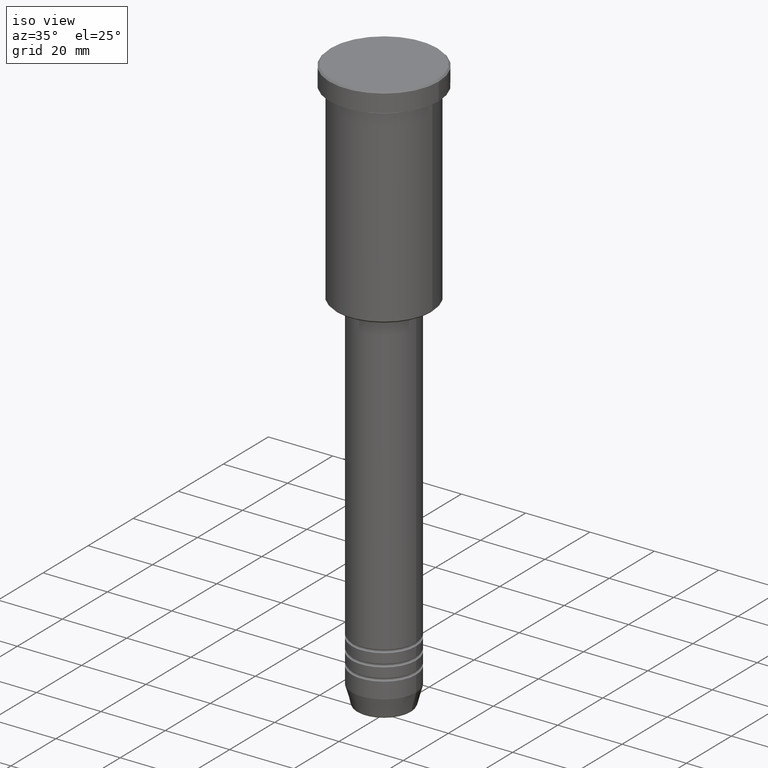
[diagram: clean part render]
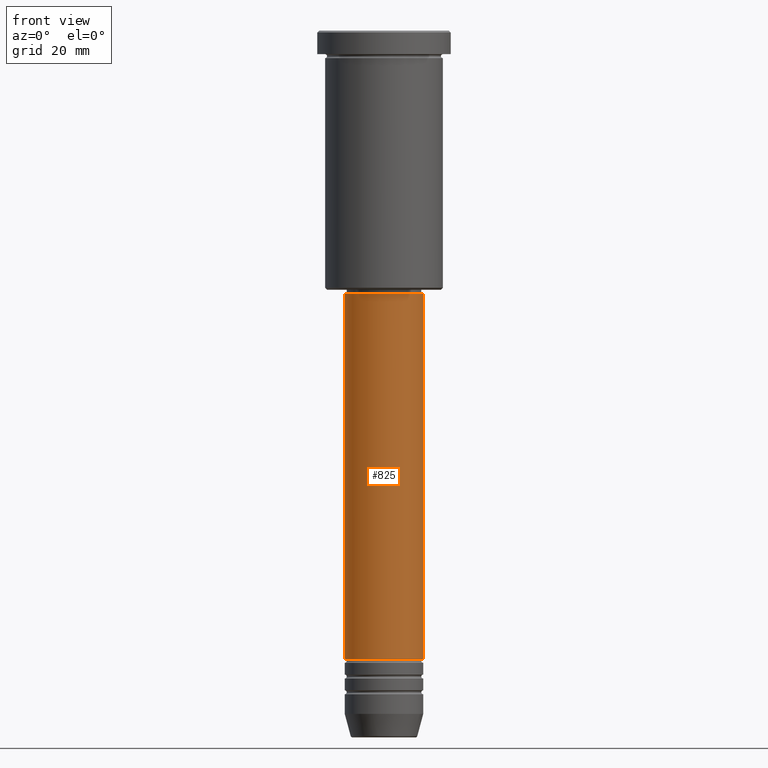
[diagram: tour spotlight — one face highlighted and labeled with its STEP entity id]
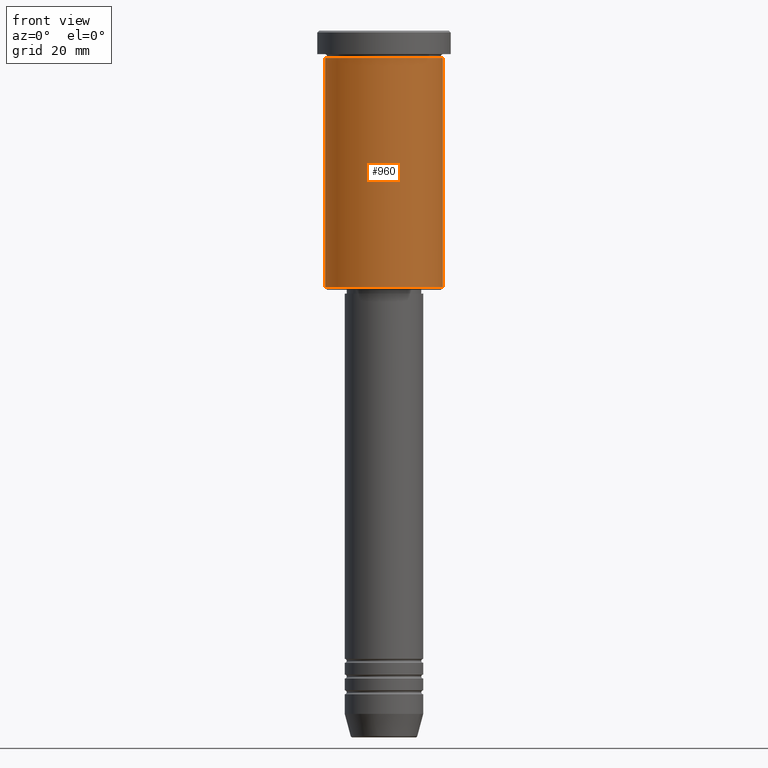
[diagram: tour spotlight — one face highlighted and labeled with its STEP entity id]
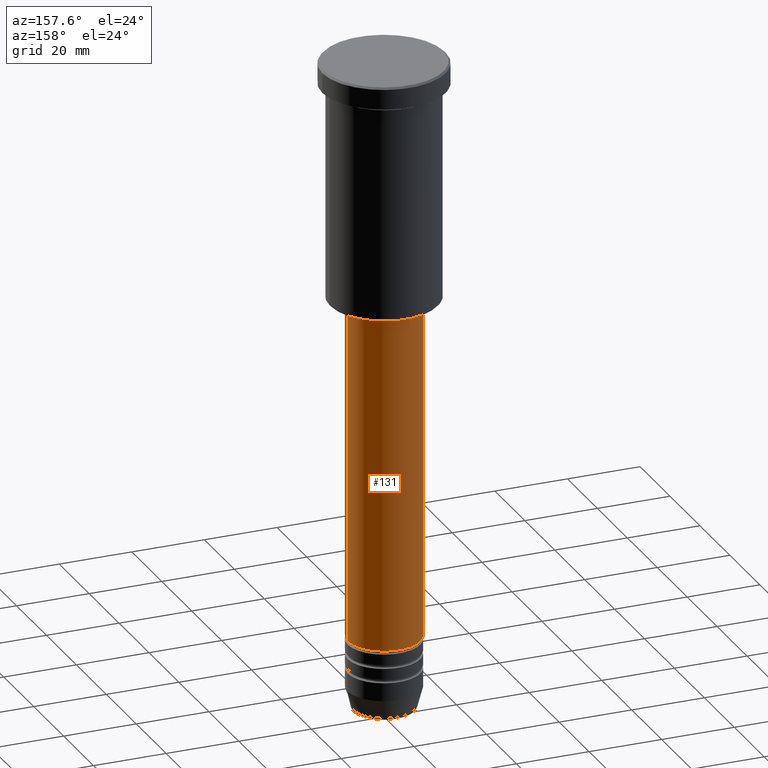
[diagram: tour spotlight — one face highlighted and labeled with its STEP entity id]
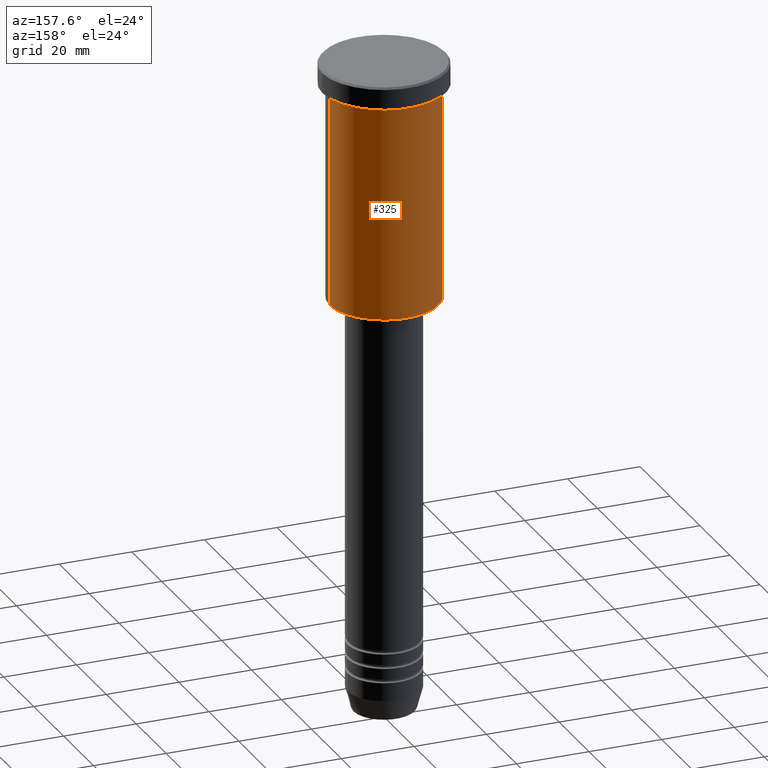
[diagram: tour spotlight — one face highlighted and labeled with its STEP entity id]
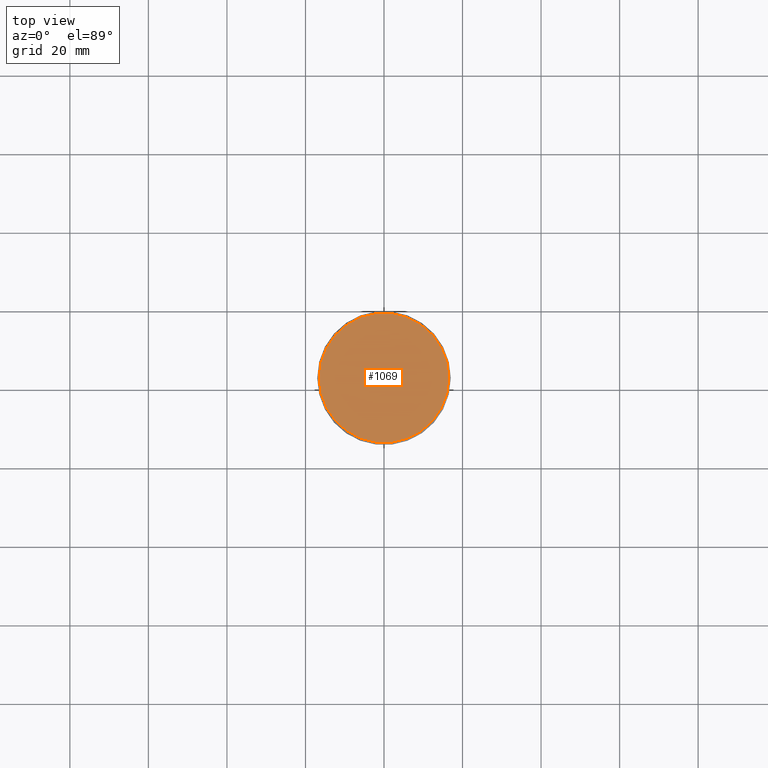
[diagram: tour spotlight — one face highlighted and labeled with its STEP entity id]
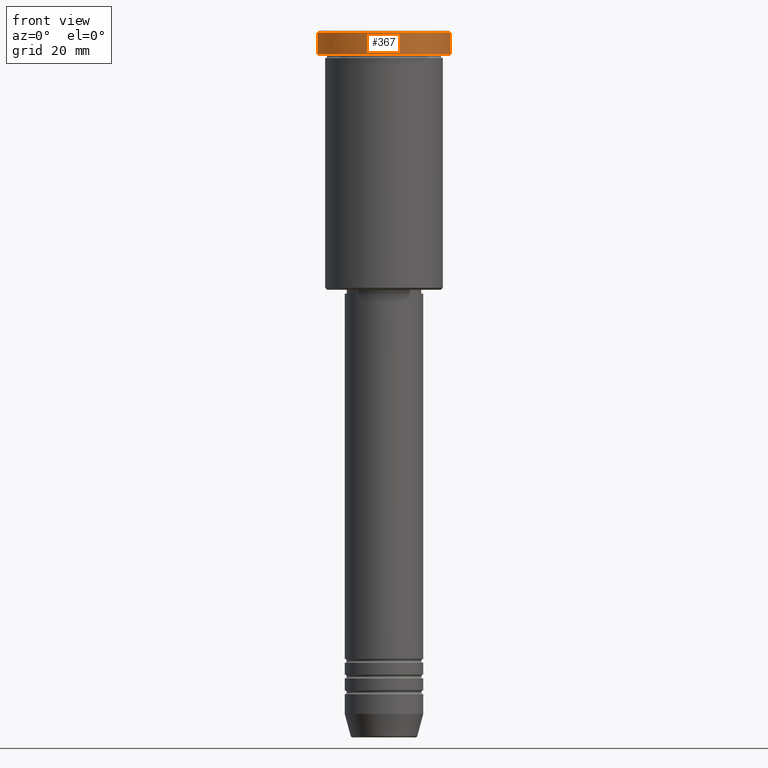
[diagram: tour spotlight — one face highlighted and labeled with its STEP entity id]
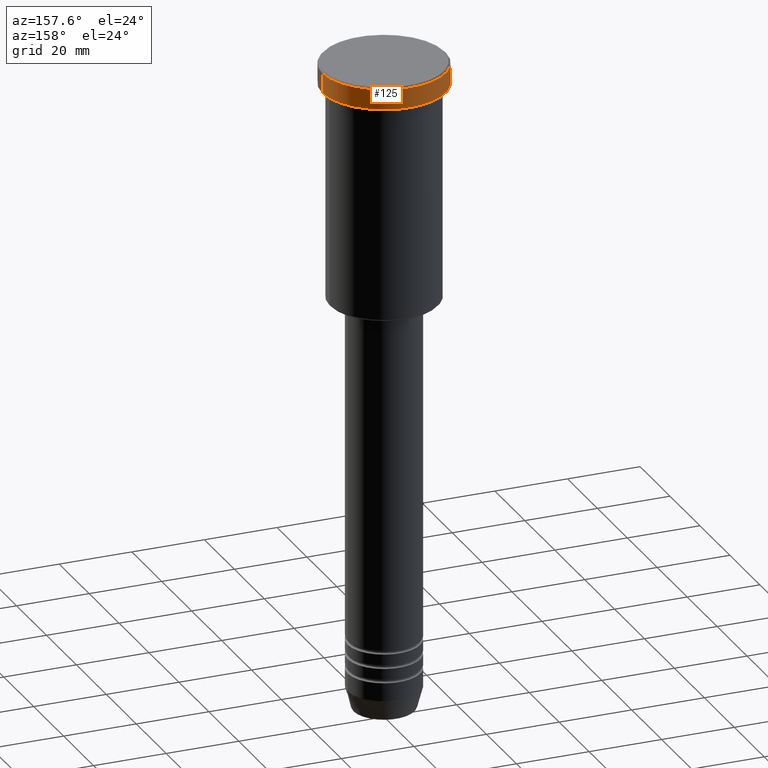
[diagram: tour spotlight — one face highlighted and labeled with its STEP entity id]
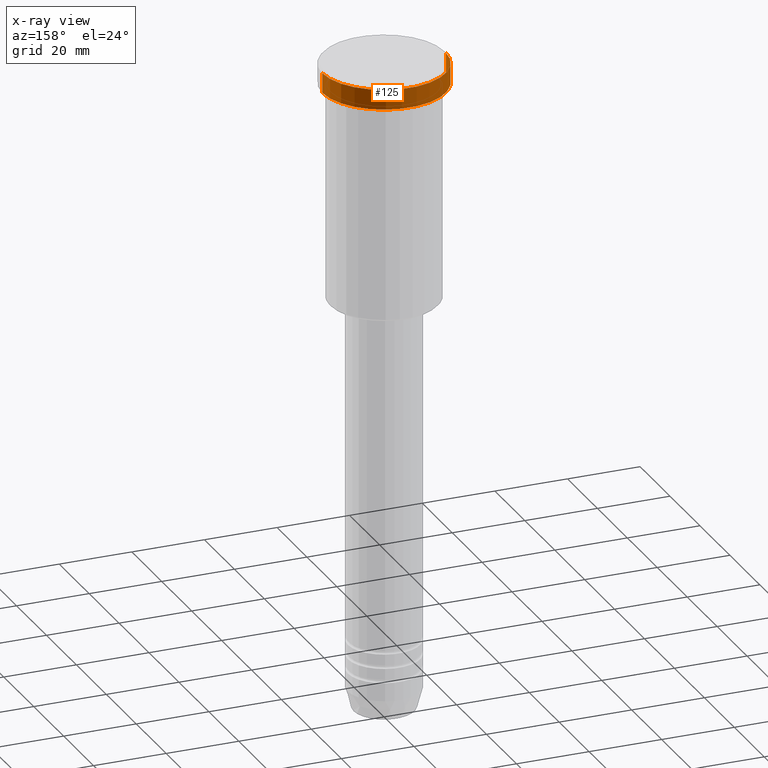
[diagram: x-ray of the same camera — body ghosted, this tour face saturated]
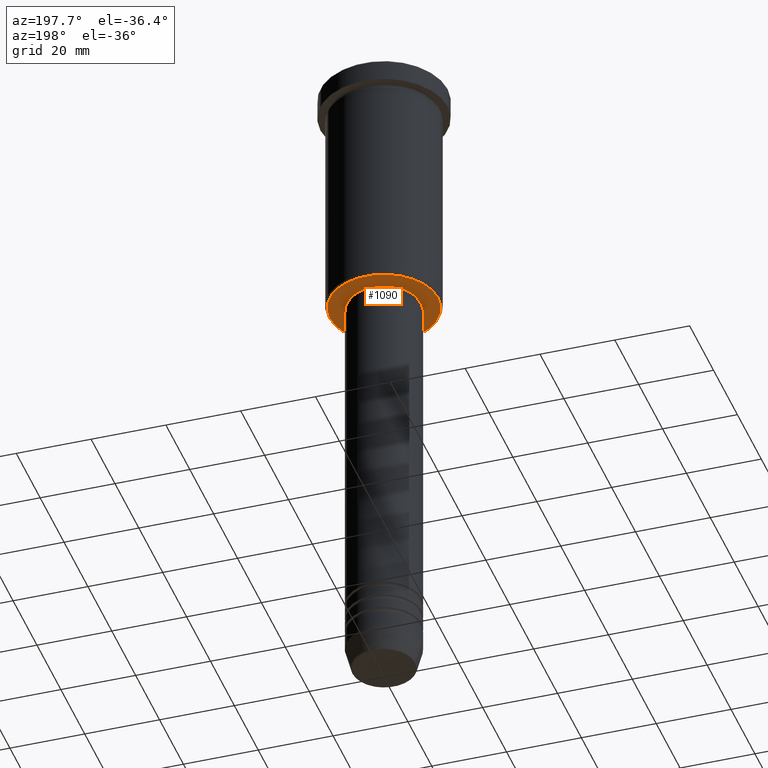
[diagram: tour spotlight — one face highlighted and labeled with its STEP entity id]
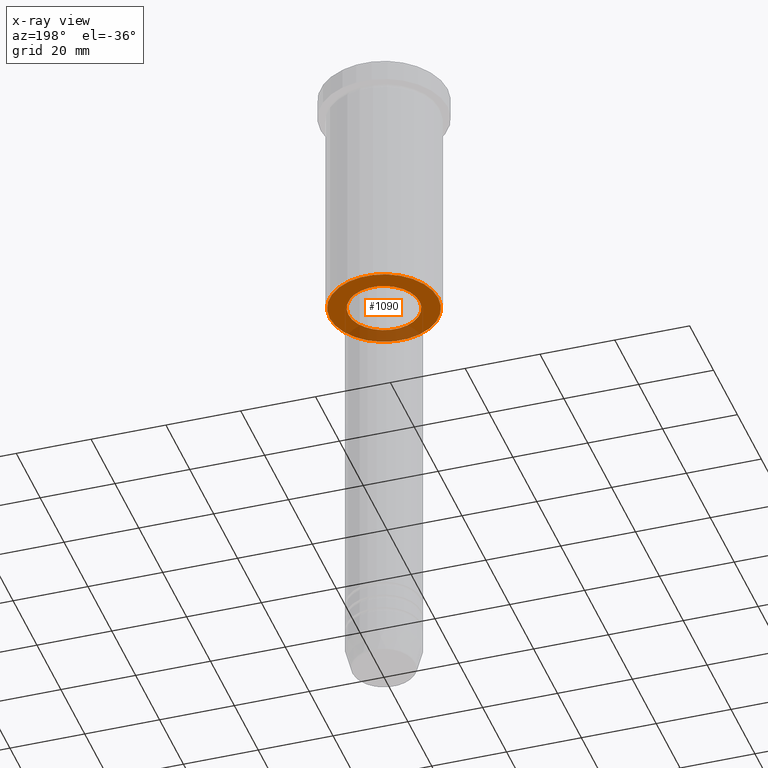
[diagram: x-ray of the same camera — body ghosted, this tour face saturated]
A machine part: a face-by-face anatomy tour. The part has 43 B-rep faces; the first image is the clean iso view, then the 8 largest visible faces are spotlighted one at a time (largest first), each with its STEP entity span.

Face 1 — front view, entity #825. In plain terms, the highlighted cylindrical surface (partial cylindrical patch) has radius 10 mm, axis along (-0, -0, 1).
Definition (entity closure, byte-faithful):
#6 = LINE ( 'NONE', #841, #1075 ) ;
#18 = CIRCLE ( 'NONE', #667, 9.999999999999998224 ) ;
#67 = DIRECTION ( 'NONE',  ( -0.000000000000000000, -0.000000000000000000, 1.000000000000000000 ) ) ;
#73 = EDGE_LOOP ( 'NONE', ( #370, #595, #387, #1060 ) ) ;
#78 = CARTESIAN_POINT ( 'NONE',  ( 0.000000000000000000, 0.000000000000000000, -67.00000000000002842 ) ) ;
#90 = EDGE_CURVE ( 'NONE', #742, #167, #6, .T. ) ;
#167 = VERTEX_POINT ( 'NONE', #1124 ) ;
#169 = CARTESIAN_POINT ( 'NONE',  ( 0.000000000000000000, 0.000000000000000000, -160.0000000000000000 ) ) ;
#234 = DIRECTION ( 'NONE',  ( 1.000000000000000000, 0.000000000000000000, 0.000000000000000000 ) ) ;
#263 = AXIS2_PLACEMENT_3D ( 'NONE', #169, #67, #700 ) ;
#353 = EDGE_CURVE ( 'NONE', #167, #738, #18, .T. ) ;
#370 = ORIENTED_EDGE ( 'NONE', *, *, #90, .F. ) ;
#387 = ORIENTED_EDGE ( 'NONE', *, *, #623, .T. ) ;
#417 = CARTESIAN_POINT ( 'NONE',  ( 0.000000000000000000, 0.000000000000000000, 0.000000000000000000 ) ) ;
#430 = CARTESIAN_POINT ( 'NONE',  ( 9.999999999999998224, 0.000000000000000000, -67.00000000000002842 ) ) ;
#582 = CARTESIAN_POINT ( 'NONE',  ( 10.00000000000000000, 0.000000000000000000, 0.000000000000000000 ) ) ;
#595 = ORIENTED_EDGE ( 'NONE', *, *, #740, .T. ) ;
#609 = FACE_OUTER_BOUND ( 'NONE', #73, .T. ) ;
#623 = EDGE_CURVE ( 'NONE', #964, #738, #1113, .T. ) ;
#667 = AXIS2_PLACEMENT_3D ( 'NONE', #78, #702, #807 ) ;
#700 = DIRECTION ( 'NONE',  ( 1.000000000000000000, 0.000000000000000000, 0.000000000000000000 ) ) ;
#702 = DIRECTION ( 'NONE',  ( -0.000000000000000000, -0.000000000000000000, 1.000000000000000000 ) ) ;
#731 = CARTESIAN_POINT ( 'NONE',  ( 10.00000000000000178, 0.000000000000000000, -160.0000000000000000 ) ) ;
#738 = VERTEX_POINT ( 'NONE', #430 ) ;
#740 = EDGE_CURVE ( 'NONE', #742, #964, #1014, .T. ) ;
#742 = VERTEX_POINT ( 'NONE', #792 ) ;
#792 = CARTESIAN_POINT ( 'NONE',  ( -10.00000000000000178, 1.224646799147353454E-15, -160.0000000000000000 ) ) ;
#799 = AXIS2_PLACEMENT_3D ( 'NONE', #417, #973, #234 ) ;
#807 = DIRECTION ( 'NONE',  ( 1.000000000000000000, 0.000000000000000000, 0.000000000000000000 ) ) ;
#825 = ADVANCED_FACE ( 'NONE', ( #609 ), #880, .T. ) ;
#841 = CARTESIAN_POINT ( 'NONE',  ( -10.00000000000000000, 1.224646799147353256E-15, 0.000000000000000000 ) ) ;
#880 = CYLINDRICAL_SURFACE ( 'NONE', #799, 10.00000000000000000 ) ;
#939 = VECTOR ( 'NONE', #1048, 1000.000000000000000 ) ;
#964 = VERTEX_POINT ( 'NONE', #731 ) ;
#973 = DIRECTION ( 'NONE',  ( -0.000000000000000000, -0.000000000000000000, 1.000000000000000000 ) ) ;
#1014 = CIRCLE ( 'NONE', #263, 10.00000000000000178 ) ;
#1048 = DIRECTION ( 'NONE',  ( -0.000000000000000000, -0.000000000000000000, 1.000000000000000000 ) ) ;
#1060 = ORIENTED_EDGE ( 'NONE', *, *, #353, .F. ) ;
#1075 = VECTOR ( 'NONE', #1105, 1000.000000000000000 ) ;
#1105 = DIRECTION ( 'NONE',  ( -0.000000000000000000, -0.000000000000000000, 1.000000000000000000 ) ) ;
#1113 = LINE ( 'NONE', #582, #939 ) ;
#1124 = CARTESIAN_POINT ( 'NONE',  ( -9.999999999999998224, 1.224646799147353256E-15, -67.00000000000002842 ) ) ;

Face 2 — front view, entity #960. In plain terms, the highlighted cylindrical surface (partial cylindrical patch) has radius 15 mm, axis along (-0, -0, 1).
Definition (entity closure, byte-faithful):
#15 = VERTEX_POINT ( 'NONE', #1099 ) ;
#25 = DIRECTION ( 'NONE',  ( 1.000000000000000000, 0.000000000000000000, 0.000000000000000000 ) ) ;
#38 = CARTESIAN_POINT ( 'NONE',  ( 0.000000000000000000, 0.000000000000000000, -65.50000000000000000 ) ) ;
#39 = CIRCLE ( 'NONE', #379, 15.00000000000000000 ) ;
#50 = LINE ( 'NONE', #597, #59 ) ;
#59 = VECTOR ( 'NONE', #409, 1000.000000000000000 ) ;
#77 = FACE_OUTER_BOUND ( 'NONE', #871, .T. ) ;
#96 = CARTESIAN_POINT ( 'NONE',  ( -15.00000000000000000, 1.836970198721029589E-15, -6.999999999999995559 ) ) ;
#134 = DIRECTION ( 'NONE',  ( -1.000000000000000000, 0.000000000000000000, 0.000000000000000000 ) ) ;
#192 = VECTOR ( 'NONE', #255, 1000.000000000000000 ) ;
#194 = DIRECTION ( 'NONE',  ( 1.000000000000000000, 0.000000000000000000, 0.000000000000000000 ) ) ;
#253 = EDGE_CURVE ( 'NONE', #462, #992, #416, .T. ) ;
#255 = DIRECTION ( 'NONE',  ( -0.000000000000000000, -0.000000000000000000, 1.000000000000000000 ) ) ;
#288 = EDGE_CURVE ( 'NONE', #462, #525, #895, .T. ) ;
#308 = DIRECTION ( 'NONE',  ( -0.000000000000000000, -0.000000000000000000, 1.000000000000000000 ) ) ;
#333 = CARTESIAN_POINT ( 'NONE',  ( -15.00000000000000000, 1.836970198721029589E-15, 0.000000000000000000 ) ) ;
#349 = CYLINDRICAL_SURFACE ( 'NONE', #421, 15.00000000000000000 ) ;
#354 = CARTESIAN_POINT ( 'NONE',  ( 0.000000000000000000, 0.000000000000000000, 0.000000000000000000 ) ) ;
#373 = CARTESIAN_POINT ( 'NONE',  ( -15.00000000000000000, 1.836970198721029589E-15, -65.50000000000000000 ) ) ;
#379 = AXIS2_PLACEMENT_3D ( 'NONE', #390, #382, #25 ) ;
#382 = DIRECTION ( 'NONE',  ( -0.000000000000000000, -0.000000000000000000, 1.000000000000000000 ) ) ;
#390 = CARTESIAN_POINT ( 'NONE',  ( 0.000000000000000000, 0.000000000000000000, -6.999999999999995559 ) ) ;
#409 = DIRECTION ( 'NONE',  ( -0.000000000000000000, -0.000000000000000000, 1.000000000000000000 ) ) ;
#416 = CIRCLE ( 'NONE', #514, 15.00000000000000000 ) ;
#421 = AXIS2_PLACEMENT_3D ( 'NONE', #354, #437, #194 ) ;
#437 = DIRECTION ( 'NONE',  ( -0.000000000000000000, -0.000000000000000000, 1.000000000000000000 ) ) ;
#455 = ORIENTED_EDGE ( 'NONE', *, *, #288, .F. ) ;
#462 = VERTEX_POINT ( 'NONE', #373 ) ;
#514 = AXIS2_PLACEMENT_3D ( 'NONE', #38, #308, #134 ) ;
#525 = VERTEX_POINT ( 'NONE', #96 ) ;
#597 = CARTESIAN_POINT ( 'NONE',  ( 15.00000000000000000, 0.000000000000000000, 0.000000000000000000 ) ) ;
#624 = CARTESIAN_POINT ( 'NONE',  ( 15.00000000000000000, 0.000000000000000000, -65.50000000000000000 ) ) ;
#658 = EDGE_CURVE ( 'NONE', #525, #15, #39, .T. ) ;
#778 = EDGE_CURVE ( 'NONE', #992, #15, #50, .T. ) ;
#794 = ORIENTED_EDGE ( 'NONE', *, *, #253, .T. ) ;
#871 = EDGE_LOOP ( 'NONE', ( #455, #794, #955, #985 ) ) ;
#895 = LINE ( 'NONE', #333, #192 ) ;
#955 = ORIENTED_EDGE ( 'NONE', *, *, #778, .T. ) ;
#960 = ADVANCED_FACE ( 'NONE', ( #77 ), #349, .T. ) ;
#985 = ORIENTED_EDGE ( 'NONE', *, *, #658, .F. ) ;
#992 = VERTEX_POINT ( 'NONE', #624 ) ;
#1099 = CARTESIAN_POINT ( 'NONE',  ( 15.00000000000000000, 0.000000000000000000, -6.999999999999995559 ) ) ;

Face 3 — auxiliary view, entity #131. In plain terms, the highlighted cylindrical surface (partial cylindrical patch) has radius 10 mm, axis along (-0, -0, 1).
Definition (entity closure, byte-faithful):
#6 = LINE ( 'NONE', #841, #1075 ) ;
#89 = ORIENTED_EDGE ( 'NONE', *, *, #945, .F. ) ;
#90 = EDGE_CURVE ( 'NONE', #742, #167, #6, .T. ) ;
#116 = EDGE_CURVE ( 'NONE', #964, #742, #341, .T. ) ;
#131 = ADVANCED_FACE ( 'NONE', ( #402 ), #1045, .T. ) ;
#138 = AXIS2_PLACEMENT_3D ( 'NONE', #727, #655, #1106 ) ;
#167 = VERTEX_POINT ( 'NONE', #1124 ) ;
#279 = CARTESIAN_POINT ( 'NONE',  ( 0.000000000000000000, 0.000000000000000000, -160.0000000000000000 ) ) ;
#313 = CARTESIAN_POINT ( 'NONE',  ( 0.000000000000000000, 0.000000000000000000, 0.000000000000000000 ) ) ;
#341 = CIRCLE ( 'NONE', #976, 10.00000000000000178 ) ;
#391 = DIRECTION ( 'NONE',  ( 1.000000000000000000, 0.000000000000000000, 0.000000000000000000 ) ) ;
#402 = FACE_OUTER_BOUND ( 'NONE', #490, .T. ) ;
#403 = ORIENTED_EDGE ( 'NONE', *, *, #116, .T. ) ;
#414 = ORIENTED_EDGE ( 'NONE', *, *, #90, .T. ) ;
#430 = CARTESIAN_POINT ( 'NONE',  ( 9.999999999999998224, 0.000000000000000000, -67.00000000000002842 ) ) ;
#479 = DIRECTION ( 'NONE',  ( -0.000000000000000000, -0.000000000000000000, 1.000000000000000000 ) ) ;
#490 = EDGE_LOOP ( 'NONE', ( #403, #414, #89, #804 ) ) ;
#505 = DIRECTION ( 'NONE',  ( -0.000000000000000000, -0.000000000000000000, 1.000000000000000000 ) ) ;
#582 = CARTESIAN_POINT ( 'NONE',  ( 10.00000000000000000, 0.000000000000000000, 0.000000000000000000 ) ) ;
#623 = EDGE_CURVE ( 'NONE', #964, #738, #1113, .T. ) ;
#655 = DIRECTION ( 'NONE',  ( -0.000000000000000000, -0.000000000000000000, 1.000000000000000000 ) ) ;
#727 = CARTESIAN_POINT ( 'NONE',  ( 0.000000000000000000, 0.000000000000000000, -67.00000000000002842 ) ) ;
#731 = CARTESIAN_POINT ( 'NONE',  ( 10.00000000000000178, 0.000000000000000000, -160.0000000000000000 ) ) ;
#738 = VERTEX_POINT ( 'NONE', #430 ) ;
#742 = VERTEX_POINT ( 'NONE', #792 ) ;
#792 = CARTESIAN_POINT ( 'NONE',  ( -10.00000000000000178, 1.224646799147353454E-15, -160.0000000000000000 ) ) ;
#804 = ORIENTED_EDGE ( 'NONE', *, *, #623, .F. ) ;
#821 = CIRCLE ( 'NONE', #138, 9.999999999999998224 ) ;
#841 = CARTESIAN_POINT ( 'NONE',  ( -10.00000000000000000, 1.224646799147353256E-15, 0.000000000000000000 ) ) ;
#858 = AXIS2_PLACEMENT_3D ( 'NONE', #313, #505, #954 ) ;
#939 = VECTOR ( 'NONE', #1048, 1000.000000000000000 ) ;
#945 = EDGE_CURVE ( 'NONE', #738, #167, #821, .T. ) ;
#954 = DIRECTION ( 'NONE',  ( 1.000000000000000000, 0.000000000000000000, 0.000000000000000000 ) ) ;
#964 = VERTEX_POINT ( 'NONE', #731 ) ;
#976 = AXIS2_PLACEMENT_3D ( 'NONE', #279, #479, #391 ) ;
#1045 = CYLINDRICAL_SURFACE ( 'NONE', #858, 10.00000000000000000 ) ;
#1048 = DIRECTION ( 'NONE',  ( -0.000000000000000000, -0.000000000000000000, 1.000000000000000000 ) ) ;
#1075 = VECTOR ( 'NONE', #1105, 1000.000000000000000 ) ;
#1105 = DIRECTION ( 'NONE',  ( -0.000000000000000000, -0.000000000000000000, 1.000000000000000000 ) ) ;
#1106 = DIRECTION ( 'NONE',  ( 1.000000000000000000, 0.000000000000000000, 0.000000000000000000 ) ) ;
#1113 = LINE ( 'NONE', #582, #939 ) ;
#1124 = CARTESIAN_POINT ( 'NONE',  ( -9.999999999999998224, 1.224646799147353256E-15, -67.00000000000002842 ) ) ;

Face 4 — auxiliary view, entity #325. In plain terms, the highlighted cylindrical surface (partial cylindrical patch) has radius 15 mm, axis along (-0, -0, 1).
Definition (entity closure, byte-faithful):
#15 = VERTEX_POINT ( 'NONE', #1099 ) ;
#50 = LINE ( 'NONE', #597, #59 ) ;
#59 = VECTOR ( 'NONE', #409, 1000.000000000000000 ) ;
#96 = CARTESIAN_POINT ( 'NONE',  ( -15.00000000000000000, 1.836970198721029589E-15, -6.999999999999995559 ) ) ;
#155 = EDGE_CURVE ( 'NONE', #992, #462, #248, .T. ) ;
#192 = VECTOR ( 'NONE', #255, 1000.000000000000000 ) ;
#195 = CIRCLE ( 'NONE', #941, 15.00000000000000000 ) ;
#232 = EDGE_LOOP ( 'NONE', ( #559, #768, #1063, #1087 ) ) ;
#235 = DIRECTION ( 'NONE',  ( -0.000000000000000000, -0.000000000000000000, 1.000000000000000000 ) ) ;
#248 = CIRCLE ( 'NONE', #839, 15.00000000000000000 ) ;
#255 = DIRECTION ( 'NONE',  ( -0.000000000000000000, -0.000000000000000000, 1.000000000000000000 ) ) ;
#288 = EDGE_CURVE ( 'NONE', #462, #525, #895, .T. ) ;
#325 = ADVANCED_FACE ( 'NONE', ( #991 ), #900, .T. ) ;
#328 = DIRECTION ( 'NONE',  ( 1.000000000000000000, 0.000000000000000000, 0.000000000000000000 ) ) ;
#333 = CARTESIAN_POINT ( 'NONE',  ( -15.00000000000000000, 1.836970198721029589E-15, 0.000000000000000000 ) ) ;
#373 = CARTESIAN_POINT ( 'NONE',  ( -15.00000000000000000, 1.836970198721029589E-15, -65.50000000000000000 ) ) ;
#409 = DIRECTION ( 'NONE',  ( -0.000000000000000000, -0.000000000000000000, 1.000000000000000000 ) ) ;
#442 = DIRECTION ( 'NONE',  ( -0.000000000000000000, -0.000000000000000000, 1.000000000000000000 ) ) ;
#462 = VERTEX_POINT ( 'NONE', #373 ) ;
#525 = VERTEX_POINT ( 'NONE', #96 ) ;
#559 = ORIENTED_EDGE ( 'NONE', *, *, #155, .T. ) ;
#597 = CARTESIAN_POINT ( 'NONE',  ( 15.00000000000000000, 0.000000000000000000, 0.000000000000000000 ) ) ;
#624 = CARTESIAN_POINT ( 'NONE',  ( 15.00000000000000000, 0.000000000000000000, -65.50000000000000000 ) ) ;
#665 = CARTESIAN_POINT ( 'NONE',  ( 0.000000000000000000, 0.000000000000000000, -65.50000000000000000 ) ) ;
#768 = ORIENTED_EDGE ( 'NONE', *, *, #288, .T. ) ;
#778 = EDGE_CURVE ( 'NONE', #992, #15, #50, .T. ) ;
#839 = AXIS2_PLACEMENT_3D ( 'NONE', #665, #1137, #1142 ) ;
#895 = LINE ( 'NONE', #333, #192 ) ;
#900 = CYLINDRICAL_SURFACE ( 'NONE', #1089, 15.00000000000000000 ) ;
#903 = DIRECTION ( 'NONE',  ( 1.000000000000000000, 0.000000000000000000, 0.000000000000000000 ) ) ;
#932 = EDGE_CURVE ( 'NONE', #15, #525, #195, .T. ) ;
#941 = AXIS2_PLACEMENT_3D ( 'NONE', #1022, #442, #903 ) ;
#991 = FACE_OUTER_BOUND ( 'NONE', #232, .T. ) ;
#992 = VERTEX_POINT ( 'NONE', #624 ) ;
#1022 = CARTESIAN_POINT ( 'NONE',  ( 0.000000000000000000, 0.000000000000000000, -6.999999999999995559 ) ) ;
#1063 = ORIENTED_EDGE ( 'NONE', *, *, #932, .F. ) ;
#1087 = ORIENTED_EDGE ( 'NONE', *, *, #778, .F. ) ;
#1089 = AXIS2_PLACEMENT_3D ( 'NONE', #1171, #235, #328 ) ;
#1099 = CARTESIAN_POINT ( 'NONE',  ( 15.00000000000000000, 0.000000000000000000, -6.999999999999995559 ) ) ;
#1137 = DIRECTION ( 'NONE',  ( -0.000000000000000000, -0.000000000000000000, 1.000000000000000000 ) ) ;
#1142 = DIRECTION ( 'NONE',  ( -1.000000000000000000, 0.000000000000000000, 0.000000000000000000 ) ) ;
#1171 = CARTESIAN_POINT ( 'NONE',  ( 0.000000000000000000, 0.000000000000000000, 0.000000000000000000 ) ) ;

Face 5 — top view, entity #1069. In plain terms, the highlighted planar face has unit normal (0, -0, 1).
Definition (entity closure, byte-faithful):
#80 = VERTEX_POINT ( 'NONE', #472 ) ;
#98 = ORIENTED_EDGE ( 'NONE', *, *, #765, .T. ) ;
#126 = PLANE ( 'NONE',  #1110 ) ;
#156 = CIRCLE ( 'NONE', #418, 16.49999999999995737 ) ;
#250 = CARTESIAN_POINT ( 'NONE',  ( 0.000000000000000000, 0.000000000000000000, 0.000000000000000000 ) ) ;
#320 = AXIS2_PLACEMENT_3D ( 'NONE', #478, #770, #850 ) ;
#344 = DIRECTION ( 'NONE',  ( -0.000000000000000000, -0.000000000000000000, 1.000000000000000000 ) ) ;
#418 = AXIS2_PLACEMENT_3D ( 'NONE', #250, #344, #523 ) ;
#472 = CARTESIAN_POINT ( 'NONE',  ( 16.49999999999995737, 2.051283388571814520E-15, 0.000000000000000000 ) ) ;
#478 = CARTESIAN_POINT ( 'NONE',  ( 0.000000000000000000, 0.000000000000000000, 0.000000000000000000 ) ) ;
#482 = DIRECTION ( 'NONE',  ( 0.000000000000000000, -0.000000000000000000, 1.000000000000000000 ) ) ;
#523 = DIRECTION ( 'NONE',  ( 1.000000000000000000, 0.000000000000000000, 0.000000000000000000 ) ) ;
#577 = CARTESIAN_POINT ( 'NONE',  ( 0.000000000000000000, 0.000000000000000000, 0.000000000000000000 ) ) ;
#617 = EDGE_CURVE ( 'NONE', #901, #80, #1125, .T. ) ;
#670 = DIRECTION ( 'NONE',  ( 1.000000000000000000, 0.000000000000000000, 0.000000000000000000 ) ) ;
#736 = CARTESIAN_POINT ( 'NONE',  ( -16.49999999999995737, 0.000000000000000000, 0.000000000000000000 ) ) ;
#765 = EDGE_CURVE ( 'NONE', #80, #901, #156, .T. ) ;
#770 = DIRECTION ( 'NONE',  ( -0.000000000000000000, -0.000000000000000000, 1.000000000000000000 ) ) ;
#783 = ORIENTED_EDGE ( 'NONE', *, *, #617, .T. ) ;
#850 = DIRECTION ( 'NONE',  ( 1.000000000000000000, 0.000000000000000000, 0.000000000000000000 ) ) ;
#859 = EDGE_LOOP ( 'NONE', ( #783, #98 ) ) ;
#901 = VERTEX_POINT ( 'NONE', #736 ) ;
#1028 = FACE_OUTER_BOUND ( 'NONE', #859, .T. ) ;
#1069 = ADVANCED_FACE ( 'NONE', ( #1028 ), #126, .T. ) ;
#1110 = AXIS2_PLACEMENT_3D ( 'NONE', #577, #482, #670 ) ;
#1125 = CIRCLE ( 'NONE', #320, 16.49999999999995737 ) ;

Face 6 — front view, entity #367. In plain terms, the highlighted cylindrical surface (partial cylindrical patch) has radius 17 mm, axis along (-0, -0, 1).
Definition (entity closure, byte-faithful):
#34 = LINE ( 'NONE', #935, #61 ) ;
#45 = DIRECTION ( 'NONE',  ( 1.000000000000000000, 0.000000000000000000, 0.000000000000000000 ) ) ;
#61 = VECTOR ( 'NONE', #487, 1000.000000000000000 ) ;
#81 = EDGE_LOOP ( 'NONE', ( #199, #1139, #105, #930 ) ) ;
#105 = ORIENTED_EDGE ( 'NONE', *, *, #1079, .T. ) ;
#160 = DIRECTION ( 'NONE',  ( -0.000000000000000000, -0.000000000000000000, 1.000000000000000000 ) ) ;
#166 = FACE_OUTER_BOUND ( 'NONE', #81, .T. ) ;
#182 = VERTEX_POINT ( 'NONE', #206 ) ;
#199 = ORIENTED_EDGE ( 'NONE', *, *, #440, .F. ) ;
#201 = CARTESIAN_POINT ( 'NONE',  ( -17.00000000000000000, 2.081899558550500280E-15, 0.000000000000000000 ) ) ;
#206 = CARTESIAN_POINT ( 'NONE',  ( 17.00000000000000000, 0.000000000000000000, -0.5000000000000213163 ) ) ;
#209 = VECTOR ( 'NONE', #545, 1000.000000000000000 ) ;
#247 = AXIS2_PLACEMENT_3D ( 'NONE', #846, #298, #671 ) ;
#298 = DIRECTION ( 'NONE',  ( -0.000000000000000000, -0.000000000000000000, 1.000000000000000000 ) ) ;
#339 = CIRCLE ( 'NONE', #706, 17.00000000000000000 ) ;
#367 = ADVANCED_FACE ( 'NONE', ( #166 ), #1081, .T. ) ;
#372 = CARTESIAN_POINT ( 'NONE',  ( 17.00000000000000000, 0.000000000000000000, -5.999999999999994671 ) ) ;
#440 = EDGE_CURVE ( 'NONE', #629, #538, #929, .T. ) ;
#487 = DIRECTION ( 'NONE',  ( -0.000000000000000000, -0.000000000000000000, 1.000000000000000000 ) ) ;
#497 = CARTESIAN_POINT ( 'NONE',  ( 0.000000000000000000, 0.000000000000000000, -0.5000000000000213163 ) ) ;
#538 = VERTEX_POINT ( 'NONE', #1103 ) ;
#545 = DIRECTION ( 'NONE',  ( -0.000000000000000000, -0.000000000000000000, 1.000000000000000000 ) ) ;
#629 = VERTEX_POINT ( 'NONE', #754 ) ;
#671 = DIRECTION ( 'NONE',  ( 1.000000000000000000, 0.000000000000000000, 0.000000000000000000 ) ) ;
#692 = CARTESIAN_POINT ( 'NONE',  ( 0.000000000000000000, 0.000000000000000000, 0.000000000000000000 ) ) ;
#701 = EDGE_CURVE ( 'NONE', #629, #913, #980, .T. ) ;
#706 = AXIS2_PLACEMENT_3D ( 'NONE', #497, #869, #45 ) ;
#711 = EDGE_CURVE ( 'NONE', #182, #538, #339, .T. ) ;
#754 = CARTESIAN_POINT ( 'NONE',  ( -17.00000000000000000, 2.081899558550500280E-15, -5.999999999999994671 ) ) ;
#846 = CARTESIAN_POINT ( 'NONE',  ( 0.000000000000000000, 0.000000000000000000, -5.999999999999994671 ) ) ;
#869 = DIRECTION ( 'NONE',  ( 0.000000000000000000, 0.000000000000000000, -1.000000000000000000 ) ) ;
#913 = VERTEX_POINT ( 'NONE', #372 ) ;
#929 = LINE ( 'NONE', #201, #209 ) ;
#930 = ORIENTED_EDGE ( 'NONE', *, *, #711, .T. ) ;
#935 = CARTESIAN_POINT ( 'NONE',  ( 17.00000000000000000, 0.000000000000000000, 0.000000000000000000 ) ) ;
#980 = CIRCLE ( 'NONE', #247, 17.00000000000000000 ) ;
#1053 = AXIS2_PLACEMENT_3D ( 'NONE', #692, #160, #1077 ) ;
#1077 = DIRECTION ( 'NONE',  ( 1.000000000000000000, 0.000000000000000000, 0.000000000000000000 ) ) ;
#1079 = EDGE_CURVE ( 'NONE', #913, #182, #34, .T. ) ;
#1081 = CYLINDRICAL_SURFACE ( 'NONE', #1053, 17.00000000000000000 ) ;
#1103 = CARTESIAN_POINT ( 'NONE',  ( -17.00000000000000000, 2.081899558550500280E-15, -0.5000000000000213163 ) ) ;
#1139 = ORIENTED_EDGE ( 'NONE', *, *, #701, .T. ) ;

Face 7 — auxiliary view, entity #125. An x-ray twin of the same camera follows (body ghosted, this face saturated) — the face is partly hidden behind the body. In plain terms, the highlighted cylindrical surface (partial cylindrical patch) has radius 17 mm, axis along (-0, -0, 1).
Definition (entity closure, byte-faithful):
#17 = CIRCLE ( 'NONE', #450, 17.00000000000000000 ) ;
#31 = CARTESIAN_POINT ( 'NONE',  ( 0.000000000000000000, 0.000000000000000000, -0.5000000000000213163 ) ) ;
#34 = LINE ( 'NONE', #935, #61 ) ;
#61 = VECTOR ( 'NONE', #487, 1000.000000000000000 ) ;
#125 = ADVANCED_FACE ( 'NONE', ( #143 ), #944, .T. ) ;
#143 = FACE_OUTER_BOUND ( 'NONE', #495, .T. ) ;
#149 = EDGE_CURVE ( 'NONE', #538, #182, #17, .T. ) ;
#182 = VERTEX_POINT ( 'NONE', #206 ) ;
#201 = CARTESIAN_POINT ( 'NONE',  ( -17.00000000000000000, 2.081899558550500280E-15, 0.000000000000000000 ) ) ;
#206 = CARTESIAN_POINT ( 'NONE',  ( 17.00000000000000000, 0.000000000000000000, -0.5000000000000213163 ) ) ;
#209 = VECTOR ( 'NONE', #545, 1000.000000000000000 ) ;
#281 = ORIENTED_EDGE ( 'NONE', *, *, #440, .T. ) ;
#346 = ORIENTED_EDGE ( 'NONE', *, *, #149, .T. ) ;
#372 = CARTESIAN_POINT ( 'NONE',  ( 17.00000000000000000, 0.000000000000000000, -5.999999999999994671 ) ) ;
#440 = EDGE_CURVE ( 'NONE', #629, #538, #929, .T. ) ;
#450 = AXIS2_PLACEMENT_3D ( 'NONE', #31, #772, #875 ) ;
#487 = DIRECTION ( 'NONE',  ( -0.000000000000000000, -0.000000000000000000, 1.000000000000000000 ) ) ;
#495 = EDGE_LOOP ( 'NONE', ( #1059, #281, #346, #685 ) ) ;
#537 = AXIS2_PLACEMENT_3D ( 'NONE', #1122, #856, #660 ) ;
#538 = VERTEX_POINT ( 'NONE', #1103 ) ;
#545 = DIRECTION ( 'NONE',  ( -0.000000000000000000, -0.000000000000000000, 1.000000000000000000 ) ) ;
#575 = CARTESIAN_POINT ( 'NONE',  ( 0.000000000000000000, 0.000000000000000000, 0.000000000000000000 ) ) ;
#613 = EDGE_CURVE ( 'NONE', #913, #629, #1167, .T. ) ;
#629 = VERTEX_POINT ( 'NONE', #754 ) ;
#660 = DIRECTION ( 'NONE',  ( 1.000000000000000000, 0.000000000000000000, 0.000000000000000000 ) ) ;
#685 = ORIENTED_EDGE ( 'NONE', *, *, #1079, .F. ) ;
#754 = CARTESIAN_POINT ( 'NONE',  ( -17.00000000000000000, 2.081899558550500280E-15, -5.999999999999994671 ) ) ;
#772 = DIRECTION ( 'NONE',  ( 0.000000000000000000, 0.000000000000000000, -1.000000000000000000 ) ) ;
#847 = DIRECTION ( 'NONE',  ( -0.000000000000000000, -0.000000000000000000, 1.000000000000000000 ) ) ;
#856 = DIRECTION ( 'NONE',  ( -0.000000000000000000, -0.000000000000000000, 1.000000000000000000 ) ) ;
#875 = DIRECTION ( 'NONE',  ( 1.000000000000000000, 0.000000000000000000, 0.000000000000000000 ) ) ;
#913 = VERTEX_POINT ( 'NONE', #372 ) ;
#929 = LINE ( 'NONE', #201, #209 ) ;
#935 = CARTESIAN_POINT ( 'NONE',  ( 17.00000000000000000, 0.000000000000000000, 0.000000000000000000 ) ) ;
#944 = CYLINDRICAL_SURFACE ( 'NONE', #994, 17.00000000000000000 ) ;
#994 = AXIS2_PLACEMENT_3D ( 'NONE', #575, #847, #1027 ) ;
#1027 = DIRECTION ( 'NONE',  ( 1.000000000000000000, 0.000000000000000000, 0.000000000000000000 ) ) ;
#1059 = ORIENTED_EDGE ( 'NONE', *, *, #613, .T. ) ;
#1079 = EDGE_CURVE ( 'NONE', #913, #182, #34, .T. ) ;
#1103 = CARTESIAN_POINT ( 'NONE',  ( -17.00000000000000000, 2.081899558550500280E-15, -0.5000000000000213163 ) ) ;
#1122 = CARTESIAN_POINT ( 'NONE',  ( 0.000000000000000000, 0.000000000000000000, -5.999999999999994671 ) ) ;
#1167 = CIRCLE ( 'NONE', #537, 17.00000000000000000 ) ;

Face 8 — auxiliary view, entity #1090. An x-ray twin of the same camera follows (body ghosted, this face saturated) — the face is partly hidden behind the body. In plain terms, the highlighted planar face has unit normal (0, 0, -1).
Definition (entity closure, byte-faithful):
#28 = EDGE_CURVE ( 'NONE', #413, #256, #95, .T. ) ;
#51 = CARTESIAN_POINT ( 'NONE',  ( -14.49999999999998401, 1.806354028742345013E-15, -66.00000000000000000 ) ) ;
#75 = CIRCLE ( 'NONE', #924, 9.500000000000001776 ) ;
#95 = CIRCLE ( 'NONE', #336, 9.500000000000001776 ) ;
#133 = CARTESIAN_POINT ( 'NONE',  ( 14.49999999999998401, 0.000000000000000000, -66.00000000000000000 ) ) ;
#165 = DIRECTION ( 'NONE',  ( -0.000000000000000000, -0.000000000000000000, 1.000000000000000000 ) ) ;
#184 = CARTESIAN_POINT ( 'NONE',  ( 0.000000000000000000, 0.000000000000000000, -66.00000000000000000 ) ) ;
#233 = VERTEX_POINT ( 'NONE', #51 ) ;
#256 = VERTEX_POINT ( 'NONE', #619 ) ;
#291 = DIRECTION ( 'NONE',  ( 1.000000000000000000, 0.000000000000000000, 0.000000000000000000 ) ) ;
#336 = AXIS2_PLACEMENT_3D ( 'NONE', #184, #734, #291 ) ;
#348 = ORIENTED_EDGE ( 'NONE', *, *, #396, .T. ) ;
#394 = DIRECTION ( 'NONE',  ( 0.000000000000000000, 0.000000000000000000, -1.000000000000000000 ) ) ;
#396 = EDGE_CURVE ( 'NONE', #675, #233, #704, .T. ) ;
#413 = VERTEX_POINT ( 'NONE', #644 ) ;
#419 = DIRECTION ( 'NONE',  ( 0.000000000000000000, 0.000000000000000000, -1.000000000000000000 ) ) ;
#509 = ORIENTED_EDGE ( 'NONE', *, *, #840, .T. ) ;
#528 = DIRECTION ( 'NONE',  ( 1.000000000000000000, 0.000000000000000000, 0.000000000000000000 ) ) ;
#561 = DIRECTION ( 'NONE',  ( -1.000000000000000000, 0.000000000000000000, -0.000000000000000000 ) ) ;
#593 = AXIS2_PLACEMENT_3D ( 'NONE', #659, #394, #561 ) ;
#619 = CARTESIAN_POINT ( 'NONE',  ( 9.500000000000001776, 0.000000000000000000, -66.00000000000000000 ) ) ;
#635 = ORIENTED_EDGE ( 'NONE', *, *, #1177, .T. ) ;
#644 = CARTESIAN_POINT ( 'NONE',  ( -9.500000000000001776, 1.163414459189985682E-15, -66.00000000000000000 ) ) ;
#651 = EDGE_LOOP ( 'NONE', ( #509, #877 ) ) ;
#659 = CARTESIAN_POINT ( 'NONE',  ( 0.000000000000000000, 15.00000000000000000, -66.00000000000000000 ) ) ;
#662 = FACE_OUTER_BOUND ( 'NONE', #1065, .T. ) ;
#675 = VERTEX_POINT ( 'NONE', #133 ) ;
#682 = FACE_BOUND ( 'NONE', #651, .T. ) ;
#703 = DIRECTION ( 'NONE',  ( 0.000000000000000000, 0.000000000000000000, -1.000000000000000000 ) ) ;
#704 = CIRCLE ( 'NONE', #817, 14.49999999999998401 ) ;
#734 = DIRECTION ( 'NONE',  ( -0.000000000000000000, -0.000000000000000000, 1.000000000000000000 ) ) ;
#817 = AXIS2_PLACEMENT_3D ( 'NONE', #988, #419, #1160 ) ;
#840 = EDGE_CURVE ( 'NONE', #256, #413, #75, .T. ) ;
#877 = ORIENTED_EDGE ( 'NONE', *, *, #28, .T. ) ;
#924 = AXIS2_PLACEMENT_3D ( 'NONE', #987, #165, #528 ) ;
#986 = CARTESIAN_POINT ( 'NONE',  ( 0.000000000000000000, 0.000000000000000000, -66.00000000000000000 ) ) ;
#987 = CARTESIAN_POINT ( 'NONE',  ( 0.000000000000000000, 0.000000000000000000, -66.00000000000000000 ) ) ;
#988 = CARTESIAN_POINT ( 'NONE',  ( 0.000000000000000000, 0.000000000000000000, -66.00000000000000000 ) ) ;
#1016 = CIRCLE ( 'NONE', #1056, 14.49999999999998401 ) ;
#1056 = AXIS2_PLACEMENT_3D ( 'NONE', #986, #703, #1066 ) ;
#1065 = EDGE_LOOP ( 'NONE', ( #348, #635 ) ) ;
#1066 = DIRECTION ( 'NONE',  ( -1.000000000000000000, 0.000000000000000000, 0.000000000000000000 ) ) ;
#1090 = ADVANCED_FACE ( 'NONE', ( #662, #682 ), #1116, .T. ) ;
#1116 = PLANE ( 'NONE',  #593 ) ;
#1160 = DIRECTION ( 'NONE',  ( -1.000000000000000000, 0.000000000000000000, 0.000000000000000000 ) ) ;
#1177 = EDGE_CURVE ( 'NONE', #233, #675, #1016, .T. ) ;